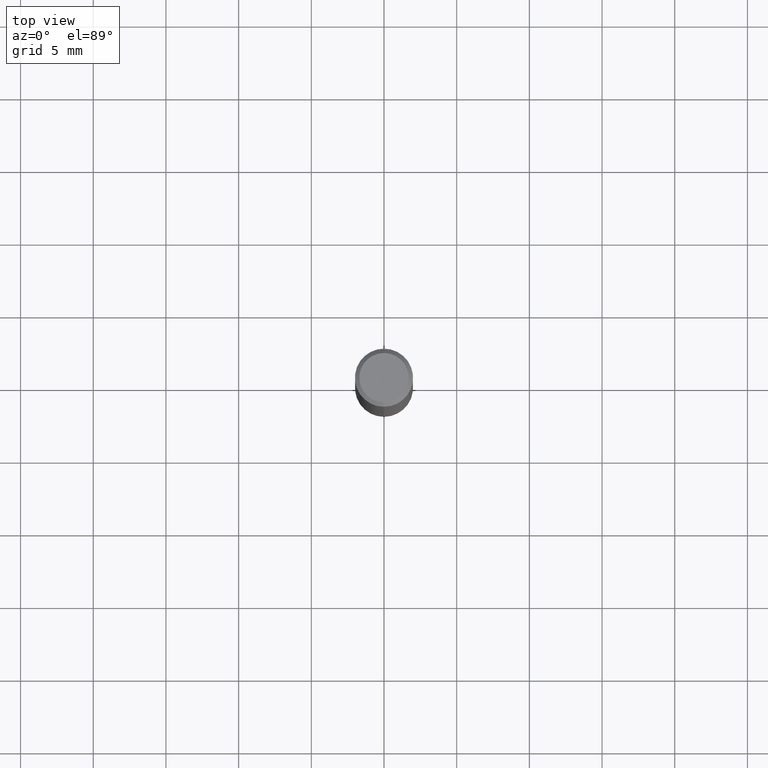
[diagram: clean part render]
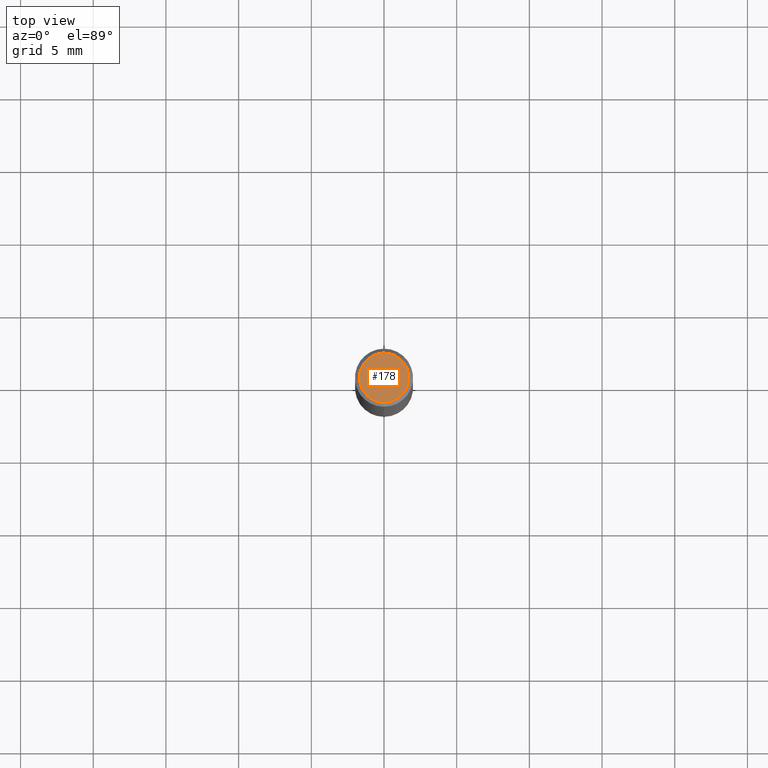
[diagram: same view with one face highlighted and labeled with its STEP entity id]
A machine part, top view. The second image highlights one B-rep face of the part: STEP entity #178.
In plain terms, the highlighted planar face has unit normal (-0, 0, 1).
Its self-contained STEP definition (entity closure, byte-faithful):
#102=VERTEX_POINT('',#230);
#108=EDGE_CURVE('',#162,#102,#236,.T.);
#128=EDGE_CURVE('',#102,#162,#257,.T.);
#162=VERTEX_POINT('',#297);
#178=ADVANCED_FACE('',(#315),#316,.T.);
#230=CARTESIAN_POINT('',(0.0,1.7,0.0));
#236=CIRCLE('',#376,1.7);
#257=CIRCLE('',#403,1.7);
#297=CARTESIAN_POINT('',(2.08183080149804E-016,-1.7,0.0));
#315=FACE_OUTER_BOUND('',#472,.T.);
#316=PLANE('',#473);
#376=AXIS2_PLACEMENT_3D('',#525,#526,#527);
#403=AXIS2_PLACEMENT_3D('',#544,#545,#546);
#472=EDGE_LOOP('',(#627,#628));
#473=AXIS2_PLACEMENT_3D('',#629,#630,#631);
#525=CARTESIAN_POINT('',(0.0,0.0,0.0));
#526=DIRECTION('',(0.0,0.0,-1.0));
#527=DIRECTION('',(0.0,1.0,0.0));
#544=CARTESIAN_POINT('',(0.0,0.0,0.0));
#545=DIRECTION('',(0.0,0.0,-1.0));
#546=DIRECTION('',(0.0,1.0,0.0));
#627=ORIENTED_EDGE('',*,*,#128,.F.);
#628=ORIENTED_EDGE('',*,*,#108,.F.);
#629=CARTESIAN_POINT('',(0.0,0.85,0.0));
#630=DIRECTION('',(-0.0,0.0,1.0));
#631=DIRECTION('',(0.0,-1.0,0.0));